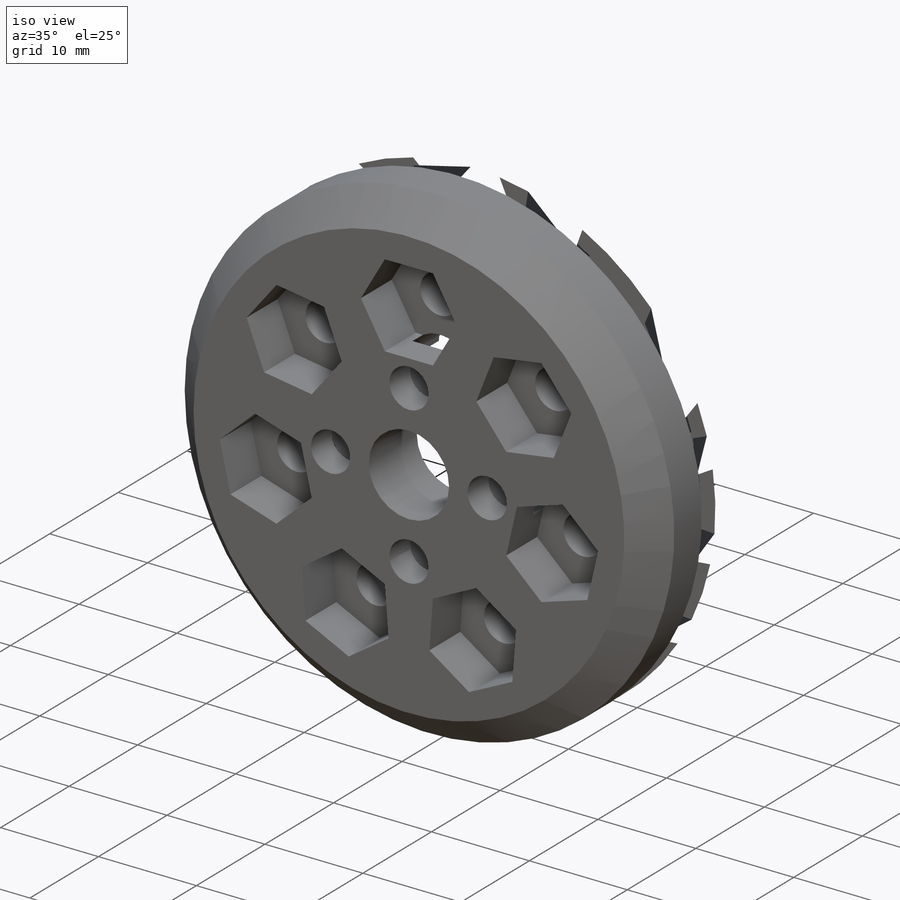
[diagram: iso view]
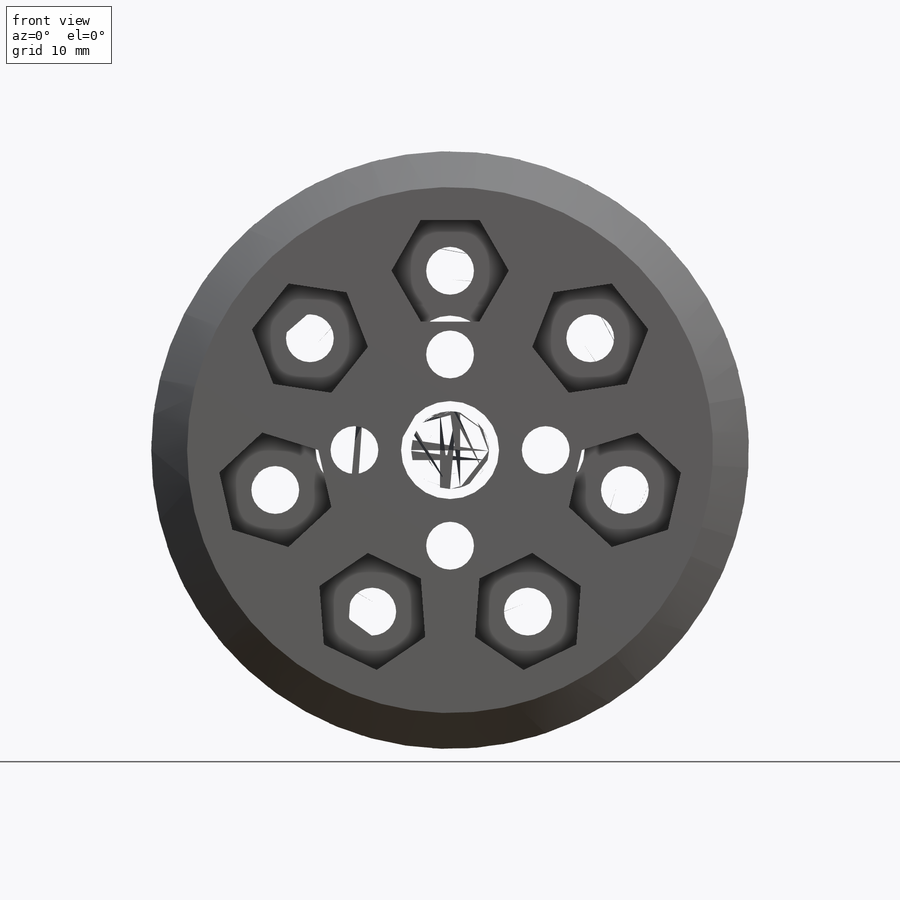
[diagram: front view]
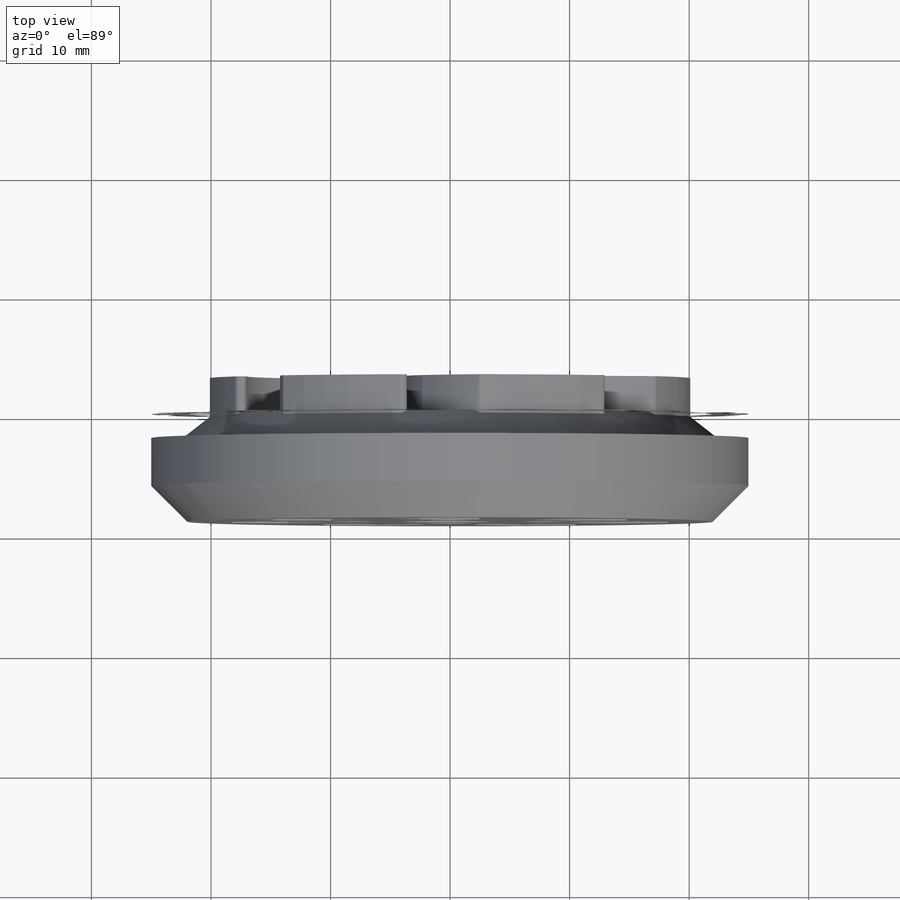
[diagram: top view]
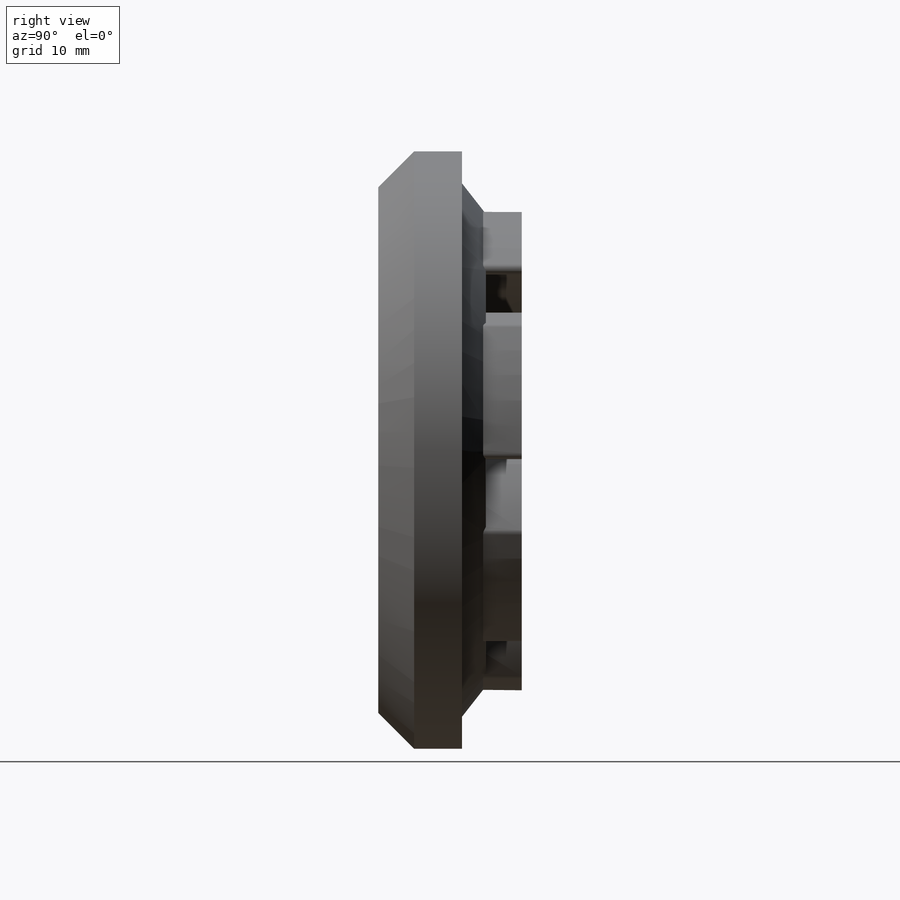
[diagram: right view]
SOLIDWORKS PART (.sldprt)
format: sldprt  version: not decoded by parser v0  size: 537,088 bytes
history: native  units: mm
features: sketch x7, cut_extrude x4, material x1, revolve x1, extrude x1, pattern_circular x1, chamfer x1 (+13 scaffold rows collapsed)
feature tree (29):
  scaffold x13  (default folders/planes/origin — collapsed)
  material  "ABS"
  sketch  "Sketch1"  dims[c1.D1=2.0mm c1.D2=8.7mm c1.D3=7.0mm c1.D4=25.0mm c1.D5=~7.833109mm c2.D5=~156.46584deg c3.D5=19.8mm c3.D6=10.3mm c4.D6=142.0deg c4.D7=~2.640117mm]
  revolve  "Revolve1"  Angle=360deg
  sketch  "Sketch5"  dims[D2=175.0deg]
  sketch  "Sketch6"  dims[D2=0.5mm D3=0.5mm D1=0.3mm]
  extrude  "Boss-Extrude1"  Depth=3mm
  pattern_circular  "CirPattern1"  Count=7 Angle=360deg
  sketch  "Sketch2"  dims[D1=4.0mm D3=8.2mm D2=8.0mm D4=4.0]
  cut_extrude  "Cut-Extrude1"  [1 undecoded]
  sketch  "Sketch3"  dims[D2=4.0mm D1=15.0mm D3=7.0]
  cut_extrude  "Cut-Extrude2"  [1 undecoded]
  sketch  "Sketch4"  dims[c1.D1=8.5mm c1.D2=~4.907477mm c2.D2=7.0]
  cut_extrude  "Cut-Extrude3"  Depth=4.5mm
  chamfer  "Chamfer1"  Distance=3mm
  sketch  "Sketch7"  dims[D1=6.5mm D2=4.0]
  cut_extrude  "Cut-Extrude4"  Depth=9mm
decode coverage: 13 of 15 modeling features carry decoded parameters
note: ~ marks probable driven/reference dimensions
note: 2 parameter values undecoded
note: suppression state not decoded; provenance and decode notes live in map.json
